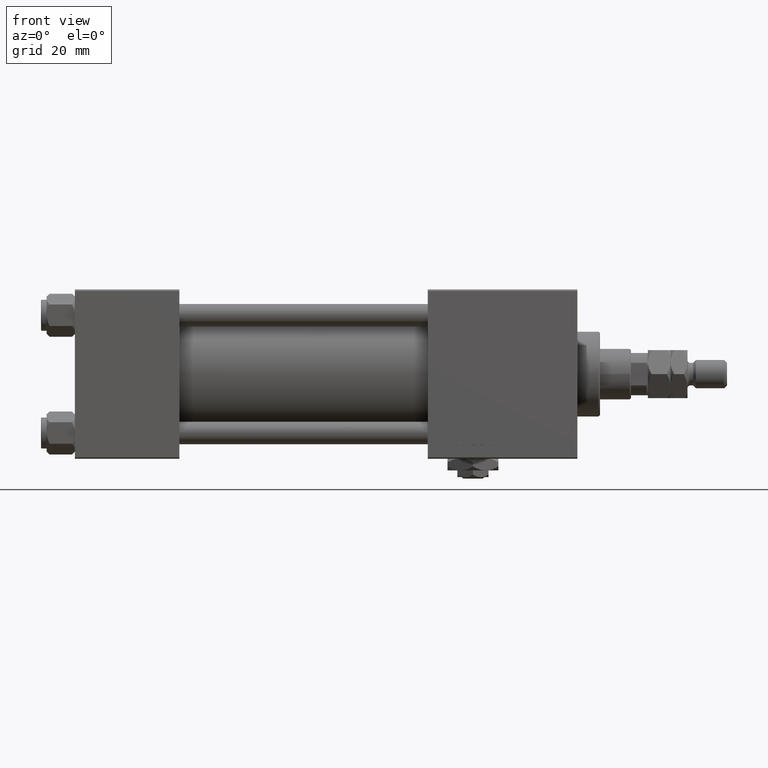
[diagram: clean part render]
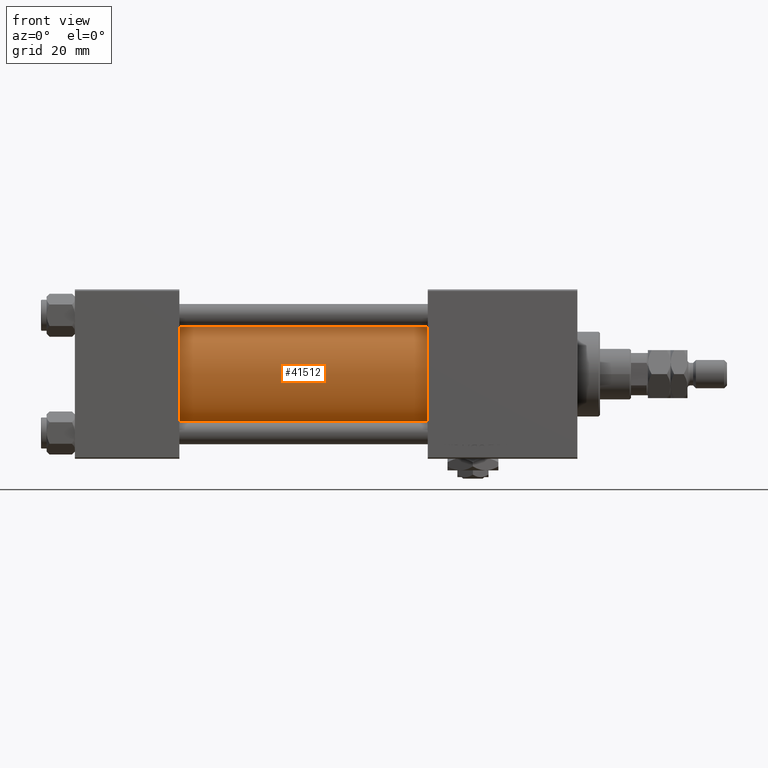
[diagram: same view with one face highlighted and labeled with its STEP entity id]
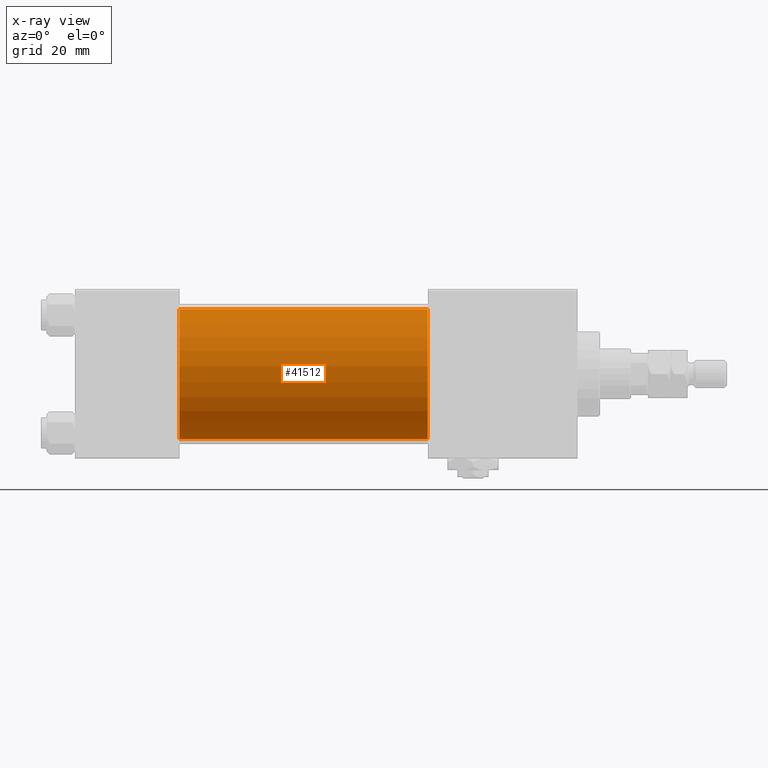
[diagram: x-ray of the same camera — body ghosted, the highlighted face saturated]
A machine part, front view. The second image highlights one B-rep face of the part: STEP entity #41512.
The next image is the same camera in x-ray: the body ghosted, the highlighted face saturated — about 0% of this face is hidden behind the body in this view.
In plain terms, the highlighted cylindrical surface (partial cylindrical patch) has radius 23 mm, axis along (-1, -0, -0).
Its self-contained STEP definition (entity closure, byte-faithful):
#1412 = VERTEX_POINT ( 'NONE', #23043 ) ;
#2768 = ORIENTED_EDGE ( 'NONE', *, *, #21386, .T. ) ;
#3697 = DIRECTION ( 'NONE',  ( -1.000000000000000000, -0.000000000000000000, -0.000000000000000000 ) ) ;
#6310 = ORIENTED_EDGE ( 'NONE', *, *, #31189, .F. ) ;
#6642 = CARTESIAN_POINT ( 'NONE',  ( 125.0000000000000000, -2.602085213965210642E-15, 23.00000000000000000 ) ) ;
#8105 = CIRCLE ( 'NONE', #49559, 23.00000000000000000 ) ;
#8646 = VERTEX_POINT ( 'NONE', #12259 ) ;
#10463 = AXIS2_PLACEMENT_3D ( 'NONE', #12351, #3697, #49895 ) ;
#12259 = CARTESIAN_POINT ( 'NONE',  ( 37.00000000000000711, 2.146024240737016609E-16, -23.00000000000000000 ) ) ;
#12351 = CARTESIAN_POINT ( 'NONE',  ( 125.0000000000000000, -2.602085213965210642E-15, 0.000000000000000000 ) ) ;
#13217 = VECTOR ( 'NONE', #47745, 1000.000000000000000 ) ;
#13933 = AXIS2_PLACEMENT_3D ( 'NONE', #25656, #34047, #50780 ) ;
#14703 = VERTEX_POINT ( 'NONE', #19642 ) ;
#16420 = LINE ( 'NONE', #36169, #23328 ) ;
#18427 = ORIENTED_EDGE ( 'NONE', *, *, #42279, .F. ) ;
#19642 = CARTESIAN_POINT ( 'NONE',  ( 125.0000000000000000, 2.146024240737016609E-16, -23.00000000000000000 ) ) ;
#21386 = EDGE_CURVE ( 'NONE', #53059, #8646, #32069, .T. ) ;
#23043 = CARTESIAN_POINT ( 'NONE',  ( 125.0000000000000000, -2.602085213965210642E-15, 23.00000000000000000 ) ) ;
#23328 = VECTOR ( 'NONE', #52930, 1000.000000000000000 ) ;
#25656 = CARTESIAN_POINT ( 'NONE',  ( 37.00000000000000711, -2.602085213965210642E-15, 0.000000000000000000 ) ) ;
#25742 = EDGE_CURVE ( 'NONE', #1412, #53059, #35305, .T. ) ;
#27772 = CARTESIAN_POINT ( 'NONE',  ( 37.00000000000000711, -2.602085213965210642E-15, 23.00000000000000000 ) ) ;
#29371 = CYLINDRICAL_SURFACE ( 'NONE', #10463, 23.00000000000000000 ) ;
#31189 = EDGE_CURVE ( 'NONE', #1412, #14703, #8105, .T. ) ;
#32069 = CIRCLE ( 'NONE', #13933, 23.00000000000000000 ) ;
#34047 = DIRECTION ( 'NONE',  ( 1.000000000000000000, -0.000000000000000000, 0.000000000000000000 ) ) ;
#35305 = LINE ( 'NONE', #6642, #13217 ) ;
#36073 = DIRECTION ( 'NONE',  ( 1.000000000000000000, 0.000000000000000000, 0.000000000000000000 ) ) ;
#36169 = CARTESIAN_POINT ( 'NONE',  ( 125.0000000000000000, 2.146024240737016609E-16, -23.00000000000000000 ) ) ;
#36345 = DIRECTION ( 'NONE',  ( 0.000000000000000000, 0.000000000000000000, -1.000000000000000000 ) ) ;
#37744 = FACE_OUTER_BOUND ( 'NONE', #51639, .T. ) ;
#41512 = ADVANCED_FACE ( 'NONE', ( #37744 ), #29371, .T. ) ;
#42279 = EDGE_CURVE ( 'NONE', #14703, #8646, #16420, .T. ) ;
#47745 = DIRECTION ( 'NONE',  ( -1.000000000000000000, -0.000000000000000000, -0.000000000000000000 ) ) ;
#48236 = CARTESIAN_POINT ( 'NONE',  ( 125.0000000000000000, -2.602085213965210642E-15, 0.000000000000000000 ) ) ;
#49559 = AXIS2_PLACEMENT_3D ( 'NONE', #48236, #36073, #36345 ) ;
#49895 = DIRECTION ( 'NONE',  ( 0.000000000000000000, 0.000000000000000000, 1.000000000000000000 ) ) ;
#50780 = DIRECTION ( 'NONE',  ( 0.000000000000000000, 0.000000000000000000, 1.000000000000000000 ) ) ;
#51639 = EDGE_LOOP ( 'NONE', ( #18427, #6310, #53004, #2768 ) ) ;
#52930 = DIRECTION ( 'NONE',  ( -1.000000000000000000, -0.000000000000000000, -0.000000000000000000 ) ) ;
#53004 = ORIENTED_EDGE ( 'NONE', *, *, #25742, .T. ) ;
#53059 = VERTEX_POINT ( 'NONE', #27772 ) ;